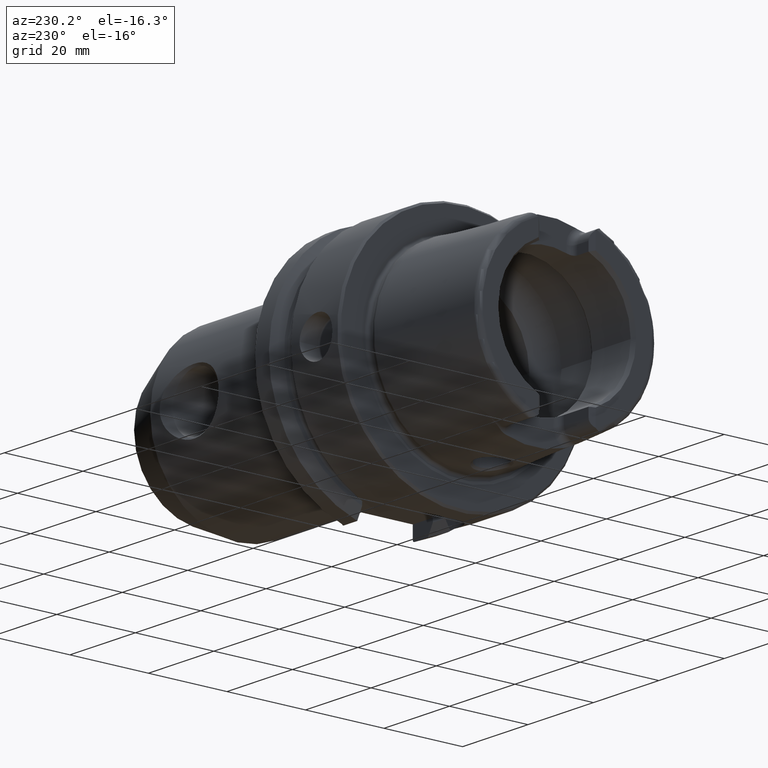
[diagram: clean part render]
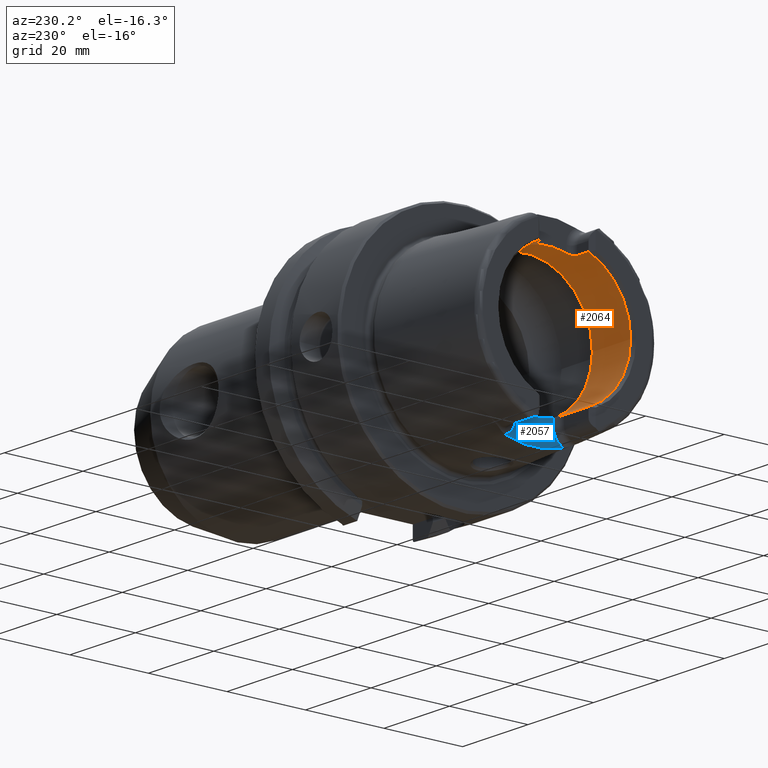
[diagram: same view with the hole feature highlighted: cylindrical wall and planar end face, labeled with their STEP entity ids]
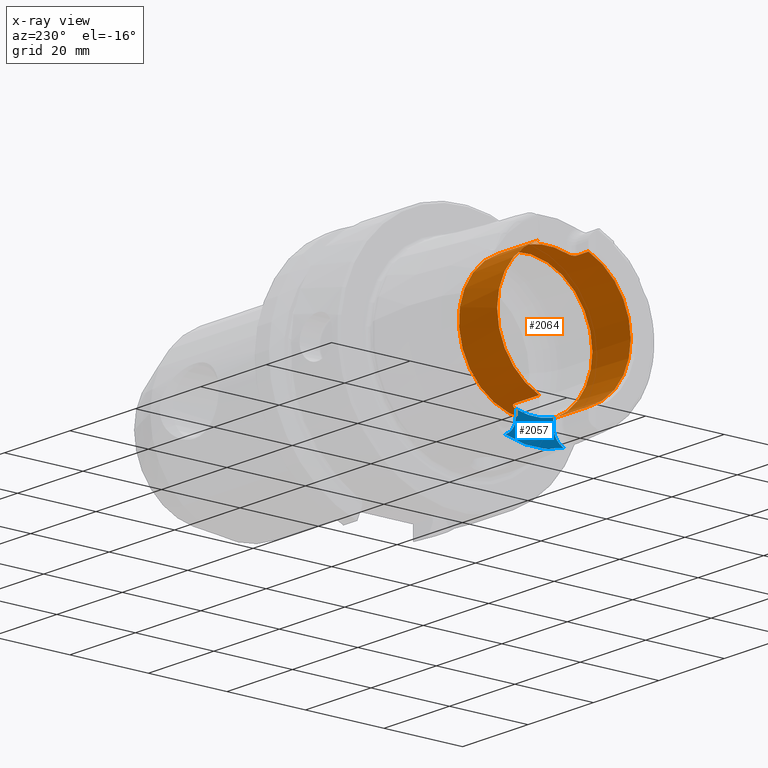
[diagram: x-ray of the same camera — body ghosted, the hole faces saturated]
A machine part, auxiliary view. The highlighted faces form one hole feature of diameter 34 mm: the cylindrical wall (entity #2064, orange) and its adjacent planar end face (entity #2057, blue) — they share a circular edge in the B-rep.
The next image is the same camera in x-ray (body ghosted, the hole faces saturated) — the bore reads through the body.
Wall:
#167=B_SPLINE_CURVE_WITH_KNOTS('',3,(#4333,#4334,#4335,#4336,#4337,#4338,
#4339,#4340,#4341,#4342),.UNSPECIFIED.,.F.,.F.,(4,2,2,2,4),(0.229569660485746,
0.289239803007022,0.348909945528297,0.405407845050218,0.46190574457214),
 .UNSPECIFIED.);
#168=B_SPLINE_CURVE_WITH_KNOTS('',3,(#4351,#4352,#4353,#4354,#4355,#4356,
#4357,#4358,#4359,#4360),.UNSPECIFIED.,.F.,.F.,(4,2,2,2,4),(0.46190574457214,
0.519239917776744,0.576574090981348,0.635410522815223,0.694246954649097),
 .UNSPECIFIED.);
#169=B_SPLINE_CURVE_WITH_KNOTS('',3,(#4369,#4370,#4371,#4372,#4373,#4374,
#4375,#4376,#4377,#4378),.UNSPECIFIED.,.F.,.F.,(4,2,2,2,4),(0.461905744572139,
0.518403644094061,0.574901543615982,0.634571686137257,0.694241828658533),
 .UNSPECIFIED.);
#170=B_SPLINE_CURVE_WITH_KNOTS('',3,(#4392,#4393,#4394,#4395,#4396,#4397,
#4398,#4399,#4400,#4401),.UNSPECIFIED.,.F.,.F.,(4,2,2,2,4),(0.229569660485747,
0.289239803007022,0.348909945528297,0.405407845050218,0.46190574457214),
 .UNSPECIFIED.);
#212=CYLINDRICAL_SURFACE('',#2300,17.);
#311=FACE_OUTER_BOUND('',#440,.T.);
#440=EDGE_LOOP('',(#1834,#1835,#1836,#1837,#1838,#1839,#1840,#1841,#1842,
#1843,#1844,#1845,#1846,#1847,#1848,#1849,#1850));
#483=LINE('',#3149,#593);
#489=LINE('',#3165,#599);
#495=LINE('',#3220,#605);
#499=LINE('',#3286,#609);
#569=LINE('',#4416,#679);
#593=VECTOR('',#2444,10.);
#599=VECTOR('',#2458,10.);
#605=VECTOR('',#2480,10.);
#609=VECTOR('',#2504,10.);
#679=VECTOR('',#2840,17.);
#769=CIRCLE('',#2288,17.);
#774=CIRCLE('',#2299,17.);
#775=CIRCLE('',#2301,17.);
#776=CIRCLE('',#2302,17.);
#777=CIRCLE('',#2303,17.);
#778=CIRCLE('',#2304,17.);
#779=CIRCLE('',#2305,17.);
#829=VERTEX_POINT('',#3102);
#836=VERTEX_POINT('',#3148);
#839=VERTEX_POINT('',#3155);
#842=VERTEX_POINT('',#3163);
#850=VERTEX_POINT('',#3210);
#853=VERTEX_POINT('',#3218);
#860=VERTEX_POINT('',#3253);
#865=VERTEX_POINT('',#3285);
#983=VERTEX_POINT('',#4331);
#985=VERTEX_POINT('',#4350);
#987=VERTEX_POINT('',#4368);
#988=VERTEX_POINT('',#4385);
#990=VERTEX_POINT('',#4412);
#991=VERTEX_POINT('',#4413);
#992=VERTEX_POINT('',#4415);
#1051=EDGE_CURVE('',#836,#829,#483,.T.);
#1059=EDGE_CURVE('',#839,#842,#489,.T.);
#1072=EDGE_CURVE('',#850,#853,#495,.T.);
#1086=EDGE_CURVE('',#865,#860,#499,.T.);
#1263=EDGE_CURVE('',#983,#853,#167,.T.);
#1267=EDGE_CURVE('',#865,#985,#168,.T.);
#1272=EDGE_CURVE('',#836,#987,#169,.T.);
#1276=EDGE_CURVE('',#988,#987,#769,.T.);
#1280=EDGE_CURVE('',#988,#842,#170,.T.);
#1284=EDGE_CURVE('',#983,#985,#774,.T.);
#1285=EDGE_CURVE('',#990,#991,#775,.T.);
#1286=EDGE_CURVE('',#990,#992,#569,.T.);
#1287=EDGE_CURVE('',#850,#992,#776,.T.);
#1288=EDGE_CURVE('',#839,#860,#777,.T.);
#1289=EDGE_CURVE('',#992,#829,#778,.T.);
#1290=EDGE_CURVE('',#991,#990,#779,.T.);
#1834=ORIENTED_EDGE('',*,*,#1285,.F.);
#1835=ORIENTED_EDGE('',*,*,#1286,.T.);
#1836=ORIENTED_EDGE('',*,*,#1287,.F.);
#1837=ORIENTED_EDGE('',*,*,#1072,.T.);
#1838=ORIENTED_EDGE('',*,*,#1263,.F.);
#1839=ORIENTED_EDGE('',*,*,#1284,.T.);
#1840=ORIENTED_EDGE('',*,*,#1267,.F.);
#1841=ORIENTED_EDGE('',*,*,#1086,.T.);
#1842=ORIENTED_EDGE('',*,*,#1288,.F.);
#1843=ORIENTED_EDGE('',*,*,#1059,.T.);
#1844=ORIENTED_EDGE('',*,*,#1280,.F.);
#1845=ORIENTED_EDGE('',*,*,#1276,.T.);
#1846=ORIENTED_EDGE('',*,*,#1272,.F.);
#1847=ORIENTED_EDGE('',*,*,#1051,.T.);
#1848=ORIENTED_EDGE('',*,*,#1289,.F.);
#1849=ORIENTED_EDGE('',*,*,#1286,.F.);
#1850=ORIENTED_EDGE('',*,*,#1290,.F.);
#2064=ADVANCED_FACE('',(#311),#212,.F.);
#2288=AXIS2_PLACEMENT_3D('',#4386,#2810,#2811);
#2299=AXIS2_PLACEMENT_3D('',#4410,#2834,#2835);
#2300=AXIS2_PLACEMENT_3D('',#4411,#2836,#2837);
#2301=AXIS2_PLACEMENT_3D('',#4414,#2838,#2839);
#2302=AXIS2_PLACEMENT_3D('',#4417,#2841,#2842);
#2303=AXIS2_PLACEMENT_3D('',#4418,#2843,#2844);
#2304=AXIS2_PLACEMENT_3D('',#4419,#2845,#2846);
#2305=AXIS2_PLACEMENT_3D('',#4420,#2847,#2848);
#2444=DIRECTION('',(-1.,0.,0.));
#2458=DIRECTION('',(1.,0.,0.));
#2480=DIRECTION('',(1.,0.,0.));
#2504=DIRECTION('',(-1.,0.,0.));
#2810=DIRECTION('center_axis',(-1.,0.,0.));
#2811=DIRECTION('ref_axis',(0.,1.,0.));
#2834=DIRECTION('center_axis',(-1.,0.,0.));
#2835=DIRECTION('ref_axis',(0.,1.,0.));
#2836=DIRECTION('center_axis',(-1.,0.,0.));
#2837=DIRECTION('ref_axis',(0.,1.,0.));
#2838=DIRECTION('center_axis',(-1.,0.,0.));
#2839=DIRECTION('ref_axis',(0.,0.,1.));
#2840=DIRECTION('',(-1.,0.,0.));
#2841=DIRECTION('center_axis',(1.,0.,0.));
#2842=DIRECTION('ref_axis',(0.,-1.,0.));
#2843=DIRECTION('center_axis',(1.,0.,0.));
#2844=DIRECTION('ref_axis',(0.,-1.,0.));
#2845=DIRECTION('center_axis',(1.,0.,0.));
#2846=DIRECTION('ref_axis',(0.,-1.,0.));
#2847=DIRECTION('center_axis',(-1.,0.,0.));
#2848=DIRECTION('ref_axis',(0.,0.,1.));
#3102=CARTESIAN_POINT('',(-31.,-6.27,-15.8014904360317));
#3148=CARTESIAN_POINT('',(-23.5,-6.27,-15.8014904360317));
#3149=CARTESIAN_POINT('',(-25.6423502691896,-6.27,-15.8014904360317));
#3155=CARTESIAN_POINT('',(-31.,6.27,-15.8014904360317));
#3163=CARTESIAN_POINT('',(-23.5,6.27,-15.8014904360317));
#3165=CARTESIAN_POINT('',(-25.6423502691896,6.27,-15.8014904360317));
#3210=CARTESIAN_POINT('',(-31.,-6.27,15.8014904360317));
#3218=CARTESIAN_POINT('',(-27.5,-6.27,15.8014904360317));
#3220=CARTESIAN_POINT('',(-25.6423502691896,-6.27,15.8014904360317));
#3253=CARTESIAN_POINT('',(-31.,6.27,15.8014904360317));
#3285=CARTESIAN_POINT('',(-27.5,6.27,15.8014904360317));
#3286=CARTESIAN_POINT('',(-25.6423502691896,6.27,15.8014904360317));
#4331=CARTESIAN_POINT('',(-26.,-4.77,16.3170800083839));
#4333=CARTESIAN_POINT('Ctrl Pts',(-26.,-4.77,16.3170800083839));
#4334=CARTESIAN_POINT('Ctrl Pts',(-26.,-4.96091029208457,16.2612708750845));
#4335=CARTESIAN_POINT('Ctrl Pts',(-26.0385404635846,-5.16378617408596,16.1979610859593));
#4336=CARTESIAN_POINT('Ctrl Pts',(-26.1950909803916,-5.53690543536203,16.0742436586733));
#4337=CARTESIAN_POINT('Ctrl Pts',(-26.3130861154278,-5.70721093092864,16.01400454532));
#4338=CARTESIAN_POINT('Ctrl Pts',(-26.5811791540138,-5.96960590306613,15.9179857910505));
#4339=CARTESIAN_POINT('Ctrl Pts',(-26.7467155703026,-6.082078486584,15.8749745356799));
#4340=CARTESIAN_POINT('Ctrl Pts',(-27.1119229195206,-6.23232125085234,15.8165946761251));
#4341=CARTESIAN_POINT('Ctrl Pts',(-27.3116736682603,-6.27,15.8014904360317));
#4342=CARTESIAN_POINT('Ctrl Pts',(-27.5,-6.27,15.8014904360317));
#4350=CARTESIAN_POINT('',(-26.,4.77,16.3170800083839));
#4351=CARTESIAN_POINT('Ctrl Pts',(-27.5,6.27,15.8014904360317));
#4352=CARTESIAN_POINT('Ctrl Pts',(-27.308886089318,6.27,15.8014904360317));
#4353=CARTESIAN_POINT('Ctrl Pts',(-27.1064099842243,6.23121026569193,15.8170435837256));
#4354=CARTESIAN_POINT('Ctrl Pts',(-26.7371019784685,6.07691823919465,15.8769617281184));
#4355=CARTESIAN_POINT('Ctrl Pts',(-26.5701870418163,5.96150738537594,15.9210500039306));
#4356=CARTESIAN_POINT('Ctrl Pts',(-26.3050641818979,5.69638452545756,16.017853695422));
#4357=CARTESIAN_POINT('Ctrl Pts',(-26.1900212186221,5.52750941197086,16.0774506535614));
#4358=CARTESIAN_POINT('Ctrl Pts',(-26.0374824299787,5.15846789211413,16.1996292802954));
#4359=CARTESIAN_POINT('Ctrl Pts',(-26.,4.95824289522375,16.2620506397863));
#4360=CARTESIAN_POINT('Ctrl Pts',(-26.,4.77,16.3170800083839));
#4368=CARTESIAN_POINT('',(-22.,-4.77,-16.3170800083839));
#4369=CARTESIAN_POINT('Ctrl Pts',(-23.5,-6.27,-15.8014904360317));
#4370=CARTESIAN_POINT('Ctrl Pts',(-23.3116736682603,-6.27,-15.8014904360317));
#4371=CARTESIAN_POINT('Ctrl Pts',(-23.1119229195206,-6.23232125085234,-15.8165946761251));
#4372=CARTESIAN_POINT('Ctrl Pts',(-22.7467155703026,-6.082078486584,-15.8749745356799));
#4373=CARTESIAN_POINT('Ctrl Pts',(-22.5811791540138,-5.96960590306613,-15.9179857910505));
#4374=CARTESIAN_POINT('Ctrl Pts',(-22.3130861154278,-5.70721093092864,-16.01400454532));
#4375=CARTESIAN_POINT('Ctrl Pts',(-22.1950909803916,-5.53690543536204,-16.0742436586733));
#4376=CARTESIAN_POINT('Ctrl Pts',(-22.0385404635846,-5.16378617408596,-16.1979610859593));
#4377=CARTESIAN_POINT('Ctrl Pts',(-22.,-4.96091029208457,-16.2612708750845));
#4378=CARTESIAN_POINT('Ctrl Pts',(-22.,-4.77,-16.3170800083839));
#4385=CARTESIAN_POINT('',(-22.,4.77,-16.3170800083839));
#4386=CARTESIAN_POINT('Origin',(-22.,0.,0.));
#4392=CARTESIAN_POINT('Ctrl Pts',(-22.,4.77,-16.3170800083839));
#4393=CARTESIAN_POINT('Ctrl Pts',(-22.,4.96091029208457,-16.2612708750845));
#4394=CARTESIAN_POINT('Ctrl Pts',(-22.0385404635846,5.16378617408596,-16.1979610859593));
#4395=CARTESIAN_POINT('Ctrl Pts',(-22.1950909803916,5.53690543536204,-16.0742436586733));
#4396=CARTESIAN_POINT('Ctrl Pts',(-22.3130861154278,5.70721093092864,-16.01400454532));
#4397=CARTESIAN_POINT('Ctrl Pts',(-22.5811791540138,5.96960590306613,-15.9179857910505));
#4398=CARTESIAN_POINT('Ctrl Pts',(-22.7467155703026,6.082078486584,-15.8749745356799));
#4399=CARTESIAN_POINT('Ctrl Pts',(-23.1119229195206,6.23232125085234,-15.8165946761251));
#4400=CARTESIAN_POINT('Ctrl Pts',(-23.3116736682603,6.27,-15.8014904360317));
#4401=CARTESIAN_POINT('Ctrl Pts',(-23.5,6.27,-15.8014904360317));
#4410=CARTESIAN_POINT('Origin',(-26.,0.,0.));
#4411=CARTESIAN_POINT('Origin',(-25.6423502691896,0.,0.));
#4412=CARTESIAN_POINT('',(-19.2847005383793,-17.,2.0818995585505E-15));
#4413=CARTESIAN_POINT('',(-19.2847005383793,-2.0818995585505E-15,-17.));
#4414=CARTESIAN_POINT('Origin',(-19.2847005383793,0.,0.));
#4415=CARTESIAN_POINT('',(-31.,-17.,2.0818995585505E-15));
#4416=CARTESIAN_POINT('',(-25.6423502691896,-17.,2.0818995585505E-15));
#4417=CARTESIAN_POINT('Origin',(-31.,0.,0.));
#4418=CARTESIAN_POINT('Origin',(-31.,0.,0.));
#4419=CARTESIAN_POINT('Origin',(-31.,0.,0.));
#4420=CARTESIAN_POINT('Origin',(-19.2847005383793,0.,0.));
End face:
#99=PLANE('',#2287);
#304=FACE_OUTER_BOUND('',#433,.T.);
#433=EDGE_LOOP('',(#1804,#1805,#1806,#1807,#1808,#1809));
#565=LINE('',#4379,#675);
#567=LINE('',#4388,#677);
#675=VECTOR('',#2800,10.);
#677=VECTOR('',#2812,10.);
#712=CIRCLE('',#2172,23.2184268537074);
#767=CIRCLE('',#2282,4.38);
#769=CIRCLE('',#2288,17.);
#770=CIRCLE('',#2289,4.38);
#873=VERTEX_POINT('',#3451);
#874=VERTEX_POINT('',#3462);
#986=VERTEX_POINT('',#4364);
#987=VERTEX_POINT('',#4368);
#988=VERTEX_POINT('',#4385);
#989=VERTEX_POINT('',#4387);
#1098=EDGE_CURVE('',#873,#874,#712,.T.);
#1271=EDGE_CURVE('',#986,#873,#767,.T.);
#1273=EDGE_CURVE('',#987,#986,#565,.T.);
#1276=EDGE_CURVE('',#988,#987,#769,.T.);
#1277=EDGE_CURVE('',#989,#988,#567,.T.);
#1278=EDGE_CURVE('',#874,#989,#770,.T.);
#1804=ORIENTED_EDGE('',*,*,#1271,.F.);
#1805=ORIENTED_EDGE('',*,*,#1273,.F.);
#1806=ORIENTED_EDGE('',*,*,#1276,.F.);
#1807=ORIENTED_EDGE('',*,*,#1277,.F.);
#1808=ORIENTED_EDGE('',*,*,#1278,.F.);
#1809=ORIENTED_EDGE('',*,*,#1098,.F.);
#2057=ADVANCED_FACE('',(#304),#99,.T.);
#2172=AXIS2_PLACEMENT_3D('',#3463,#2514,#2515);
#2282=AXIS2_PLACEMENT_3D('',#4366,#2796,#2797);
#2287=AXIS2_PLACEMENT_3D('',#4384,#2808,#2809);
#2288=AXIS2_PLACEMENT_3D('',#4386,#2810,#2811);
#2289=AXIS2_PLACEMENT_3D('',#4389,#2813,#2814);
#2514=DIRECTION('center_axis',(1.,0.,0.));
#2515=DIRECTION('ref_axis',(0.,1.,0.));
#2796=DIRECTION('center_axis',(-1.,0.,0.));
#2797=DIRECTION('ref_axis',(0.,0.522806483831831,-0.852451394780604));
#2800=DIRECTION('',(0.,0.,-1.));
#2808=DIRECTION('center_axis',(-1.,0.,0.));
#2809=DIRECTION('ref_axis',(0.,0.,1.));
#2810=DIRECTION('center_axis',(-1.,0.,0.));
#2811=DIRECTION('ref_axis',(0.,1.,0.));
#2812=DIRECTION('',(0.,0.,1.));
#2813=DIRECTION('center_axis',(-1.,0.,0.));
#2814=DIRECTION('ref_axis',(0.,-0.522806483831831,-0.852451394780604));
#3451=CARTESIAN_POINT('',(-22.,-7.4031250016059,-22.0065691504051));
#3462=CARTESIAN_POINT('',(-22.,7.4031250016059,-22.0065691504051));
#3463=CARTESIAN_POINT('Origin',(-22.,0.,0.));
#4364=CARTESIAN_POINT('',(-22.,-4.77,-17.99));
#4366=CARTESIAN_POINT('Origin',(-22.,-9.15,-17.99));
#4368=CARTESIAN_POINT('',(-22.,-4.77,-16.3170800083839));
#4379=CARTESIAN_POINT('',(-22.,-4.77,-17.8001077154309));
#4384=CARTESIAN_POINT('Origin',(-22.,0.,-17.6102154308617));
#4385=CARTESIAN_POINT('',(-22.,4.77,-16.3170800083839));
#4386=CARTESIAN_POINT('Origin',(-22.,0.,0.));
#4387=CARTESIAN_POINT('',(-22.,4.77,-17.99));
#4388=CARTESIAN_POINT('',(-22.,4.77,-14.3051077154309));
#4389=CARTESIAN_POINT('Origin',(-22.,9.15,-17.99));